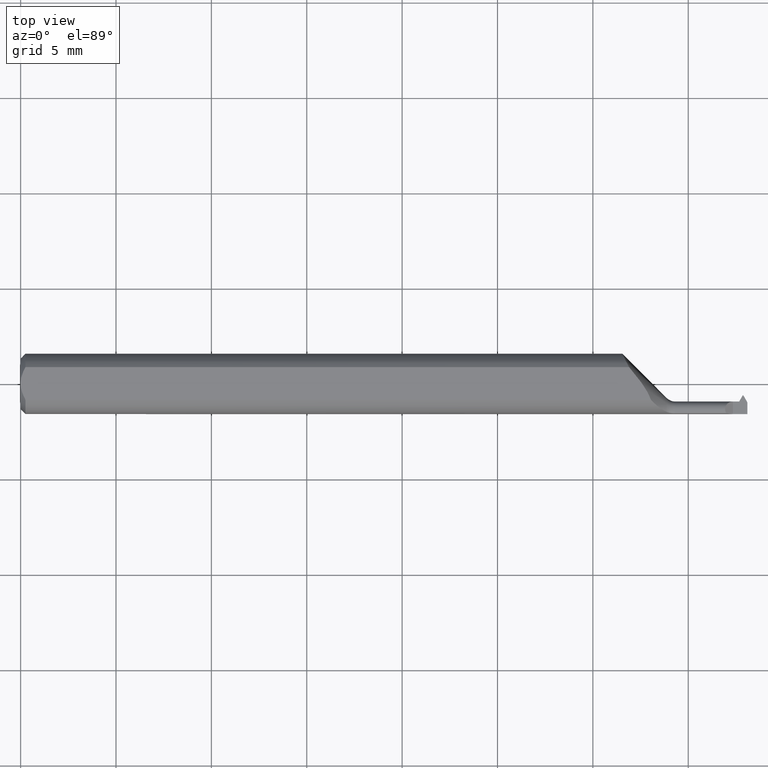
[diagram: clean part render]
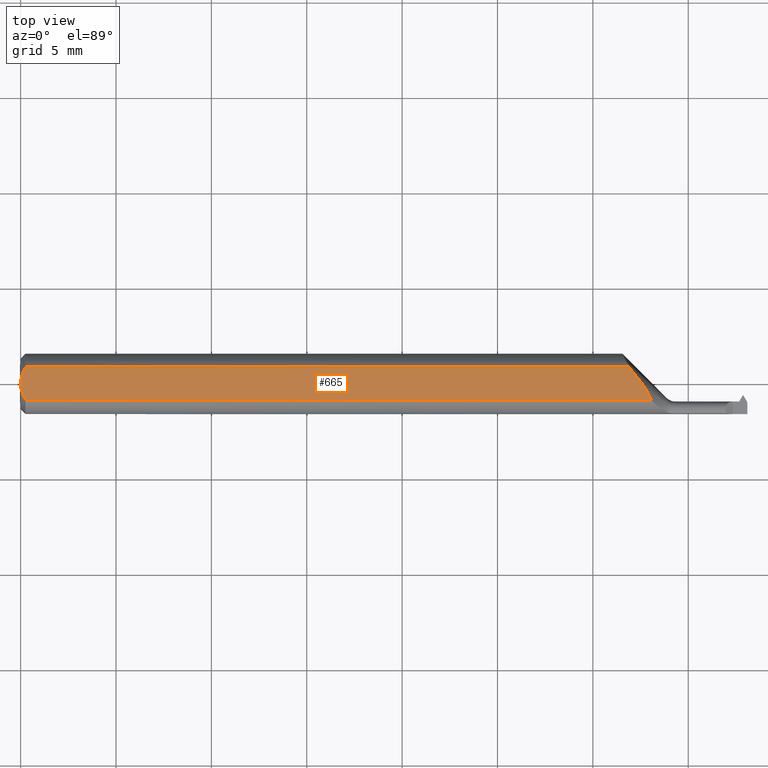
[diagram: same view with one face highlighted and labeled with its STEP entity id]
A machine part, top view. The second image highlights one B-rep face of the part: STEP entity #665.
In plain terms, the highlighted planar face has unit normal (0, 0, 1).
Its self-contained STEP definition (entity closure, byte-faithful):
#7 = CARTESIAN_POINT ( 'NONE',  ( 0.009999999999999887451, 0.03386738844375224849, 0.05234999999999997294 ) ) ;
#15 = ORIENTED_EDGE ( 'NONE', *, *, #603, .T. ) ;
#21 = EDGE_CURVE ( 'NONE', #707, #754, #387, .T. ) ;
#40 = LINE ( 'NONE', #224, #112 ) ;
#70 = CARTESIAN_POINT ( 'NONE',  ( 0.000000000000000000, 0.000000000000000000, 0.05234999999999997294 ) ) ;
#81 = EDGE_CURVE ( 'NONE', #122, #707, #40, .T. ) ;
#97 = AXIS2_PLACEMENT_3D ( 'NONE', #687, #485, #249 ) ;
#105 = CARTESIAN_POINT ( 'NONE',  ( 1.301127731721387182, -0.03386738844375222074, 0.05234999999999997294 ) ) ;
#106 = ORIENTED_EDGE ( 'NONE', *, *, #21, .T. ) ;
#112 = VECTOR ( 'NONE', #286, 39.37007874015748143 ) ;
#122 = VERTEX_POINT ( 'NONE', #795 ) ;
#128 = CARTESIAN_POINT ( 'NONE',  ( 0.000000000000000000, 0.000000000000000000, 0.05234999999999997294 ) ) ;
#139 = ORIENTED_EDGE ( 'NONE', *, *, #81, .T. ) ;
#164 = CARTESIAN_POINT ( 'NONE',  ( 1.295903638438954397, -0.02116583655497127070, 0.05234999999999997988 ) ) ;
#172 = B_SPLINE_CURVE_WITH_KNOTS ( 'NONE', 3,
 ( #128, #179, #362, #377, #259, #7 ),
 .UNSPECIFIED., .F., .F.,
 ( 4, 2, 4 ),
 ( 0.003093386807937206339, 0.003544501666246027347, 0.003995616524554848788 ),
 .UNSPECIFIED. ) ;
#173 = CARTESIAN_POINT ( 'NONE',  ( 1.298966724932452577, -0.02737628946790740883, 0.05234999999999997294 ) ) ;
#179 = CARTESIAN_POINT ( 'NONE',  ( -1.133440131013889109E-15, 0.005954997531774002505, 0.05234999999999997294 ) ) ;
#220 = LINE ( 'NONE', #283, #510 ) ;
#224 = CARTESIAN_POINT ( 'NONE',  ( 0.000000000000000000, -0.03386738844375224849, 0.05234999999999997294 ) ) ;
#244 = EDGE_CURVE ( 'NONE', #550, #360, #172, .T. ) ;
#249 = DIRECTION ( 'NONE',  ( 1.000000000000000000, 0.000000000000000000, -0.000000000000000000 ) ) ;
#259 = CARTESIAN_POINT ( 'NONE',  ( 0.007185421074056196067, 0.02868573718286566293, 0.05234999999999997294 ) ) ;
#283 = CARTESIAN_POINT ( 'NONE',  ( 0.000000000000000000, 0.03386738844375224849, 0.05234999999999997294 ) ) ;
#286 = DIRECTION ( 'NONE',  ( 1.000000000000000000, 0.000000000000000000, 0.000000000000000000 ) ) ;
#290 = CARTESIAN_POINT ( 'NONE',  ( 0.009999999999999887451, -0.03386738844375224849, 0.05234999999999997294 ) ) ;
#310 = CARTESIAN_POINT ( 'NONE',  ( 1.255778608326025614, 0.03386738844375224849, 0.05234999999999997294 ) ) ;
#325 = ORIENTED_EDGE ( 'NONE', *, *, #244, .F. ) ;
#348 = CARTESIAN_POINT ( 'NONE',  ( 1.285224182788650138, -0.003615021247189862275, 0.05234999999999997294 ) ) ;
#355 = CARTESIAN_POINT ( 'NONE',  ( 1.264639298171978288, 0.02350123349129881051, 0.05234999999999997294 ) ) ;
#360 = VERTEX_POINT ( 'NONE', #697 ) ;
#362 = CARTESIAN_POINT ( 'NONE',  ( 0.001063697276021325104, 0.01189177144351695990, 0.05234999999999997988 ) ) ;
#377 = CARTESIAN_POINT ( 'NONE',  ( 0.004671770759546750584, 0.02323517832780109052, 0.05234999999999998682 ) ) ;
#387 = B_SPLINE_CURVE_WITH_KNOTS ( 'NONE', 3,
 ( #727, #173, #164, #474, #348, #418, #355, #778 ),
 .UNSPECIFIED., .F., .F.,
 ( 4, 2, 2, 4 ),
 ( 0.001839256232207844149, 0.002352703369855393099, 0.002866150507502942049, 0.003893044782798039949 ),
 .UNSPECIFIED. ) ;
#411 = EDGE_CURVE ( 'NONE', #122, #550, #566, .T. ) ;
#418 = CARTESIAN_POINT ( 'NONE',  ( 1.273286918736876272, 0.01297177664154523097, 0.05234999999999996600 ) ) ;
#474 = CARTESIAN_POINT ( 'NONE',  ( 1.289027108239478636, -0.009278969497925417670, 0.05234999999999997988 ) ) ;
#485 = DIRECTION ( 'NONE',  ( 0.000000000000000000, 0.000000000000000000, 1.000000000000000000 ) ) ;
#510 = VECTOR ( 'NONE', #657, 39.37007874015748143 ) ;
#533 = FACE_OUTER_BOUND ( 'NONE', #719, .T. ) ;
#540 = CARTESIAN_POINT ( 'NONE',  ( 0.007163450771350382031, -0.02864528976618618133, 0.05234999999999997294 ) ) ;
#550 = VERTEX_POINT ( 'NONE', #70 ) ;
#566 = B_SPLINE_CURVE_WITH_KNOTS ( 'NONE', 3,
 ( #290, #540, #593, #596, #718, #781 ),
 .UNSPECIFIED., .F., .F.,
 ( 4, 2, 4 ),
 ( 0.002189598257423874383, 0.002641492532680540361, 0.003093386807937206339 ),
 .UNSPECIFIED. ) ;
#593 = CARTESIAN_POINT ( 'NONE',  ( 0.004679365186780987812, -0.02325953974079660730, 0.05234999999999997988 ) ) ;
#596 = CARTESIAN_POINT ( 'NONE',  ( 0.001055043921632921322, -0.01186408073210964975, 0.05234999999999997988 ) ) ;
#603 = EDGE_CURVE ( 'NONE', #754, #360, #220, .T. ) ;
#646 = ORIENTED_EDGE ( 'NONE', *, *, #411, .F. ) ;
#657 = DIRECTION ( 'NONE',  ( -1.000000000000000000, -0.000000000000000000, -0.000000000000000000 ) ) ;
#665 = ADVANCED_FACE ( 'NONE', ( #533 ), #774, .T. ) ;
#687 = CARTESIAN_POINT ( 'NONE',  ( 1.630958352158234037, 0.06235000000000000264, 0.05234999999999997294 ) ) ;
#697 = CARTESIAN_POINT ( 'NONE',  ( 0.009999999999999887451, 0.03386738844375224849, 0.05234999999999997294 ) ) ;
#707 = VERTEX_POINT ( 'NONE', #105 ) ;
#718 = CARTESIAN_POINT ( 'NONE',  ( -1.104610997828796865E-15, -0.005965286321680308458, 0.05234999999999996600 ) ) ;
#719 = EDGE_LOOP ( 'NONE', ( #139, #106, #15, #325, #646 ) ) ;
#727 = CARTESIAN_POINT ( 'NONE',  ( 1.301127731721387182, -0.03386738844375222074, 0.05234999999999997294 ) ) ;
#754 = VERTEX_POINT ( 'NONE', #310 ) ;
#774 = PLANE ( 'NONE',  #97 ) ;
#778 = CARTESIAN_POINT ( 'NONE',  ( 1.255778608326025614, 0.03386738844375224849, 0.05234999999999997294 ) ) ;
#781 = CARTESIAN_POINT ( 'NONE',  ( 0.000000000000000000, 0.000000000000000000, 0.05234999999999997294 ) ) ;
#795 = CARTESIAN_POINT ( 'NONE',  ( 0.009999999999999887451, -0.03386738844375224849, 0.05234999999999997294 ) ) ;